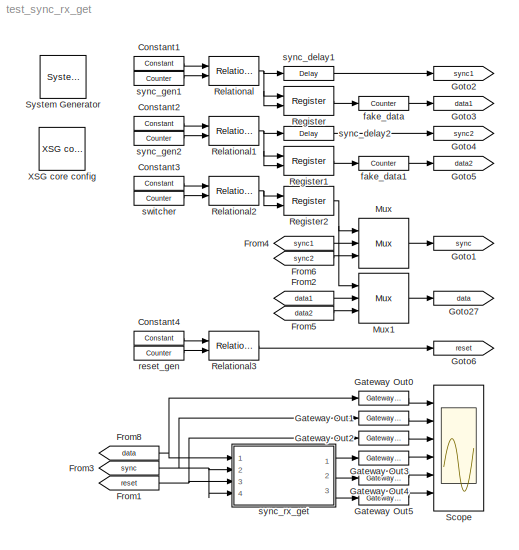
MODEL test_sync_rx_get
KIND model
BLOCK [Reference]  System Generator  REF=xbsIndex_r4/ System Generator
  AttributesFormatString = System\\nGenerator
  FunctionWithSeparateData = off
  Ports = []
  RTWMemSecDataConstants = Inherit from model
  RTWMemSecDataInternal = Inherit from model
  RTWMemSecDataParameters = Inherit from model
  RTWMemSecFuncExecute = Inherit from model
  RTWMemSecFuncInitTerm = Inherit from model
  SID = 1
  ShowPortLabels = FromPortIcon
  SourceBlock = xbsIndex_r4/ System Generator
  SourceType = Xilinx System Generator Block
  SystemSampleTime = -1
  Tag = genX
  UserData = DataTag0
  UserDataPersistent = on
  block_type = sysgen
  block_version = 10.1.1
  clock_wrapper = Clock Enables
  core_generation = According to Block Masks
  dbl_ovrd = According to Block Masks
  dcm_input_clock_period = 100
  deprecated_control = off
  directory = ./isi_correlator_cropped/sysgen
  eval_field = 0
  has_advanced_control = 0
  incr_netlist = off
  infoedit = System Generator
  package = ff1136
  part = xc5vsx95t
  run_coregen = off
  sg_icon_stat = 46,43,-1,-1,red,beige,0,07734,right
  sg_mask_display = fprintf('','COMMENT: begin icon graphics');\npatch([0 46 46 0 ],[0 0 43 43 ],[0.93 0.92 0.86]);\npatch([11 4 14 4 11 22 25 28 40 30 21 14 23 14 21 30 40 28 25 22 11 ],[5 12 22 32 39 39 36 39 39 29 38 31 22 13 6 15 5 5 8 5 5 ],[0.6 0.2 0.25]);\nplot([0 46 46 0 0 ],[0 0 43 43 0 ]);\nfprintf('','COMMENT: end icon graphics');\nfprintf('','COMMENT: begin icon text');\nfprintf('','COMMENT: end icon text...<+5ch>
  sggui_pos = -1,-1,-1,-1
  simulink_period = 1
  speed = -1
  synthesis_tool = XST
  sysclk_period = 5
  testbench = off
  trim_vbits = Everywhere in SubSystem
  xilinxfamily = virtex5
BLOCK [Reference] Constant1  REF=xbsIndex_r4/Constant
  Ports = [0, 1]
  SID = 25
  SourceBlock = xbsIndex_r4/Constant
  SourceType = Xilinx Constant Block Block
  arith_type = Unsigned
  bin_pt = 0
  block_type = constant
  block_version = 10.1.3
  carry = CIN
  const = 17
  dbl_ovrd = off
  dsp48_infoedit = The use of this block for DSP48 instructions is deprecated.  Please use the Opmode block.
  equ = P=C
  explicit_period = on
  has_advanced_control = 0
  inp1 = P
  inp2 = PCIN>>17
  n_bits = 7
  opr = +
  opselect = C
  period = 1
  sg_icon_stat = 50,14,0,1,white,blue,0,1802740d,right,
  sg_list_contents = {'table'=>{'carry'=>'popup(0|1|CIN|~SIGN(P or PCIN)|~SIGN(A*B or A:B)|~SIGND(A*B or A:B))','inp1'=>'popup(0|P|A:B|A*B|C|P+C|A:B+C)','inp2'=>'popup(0|PCIN|P|C|PCIN>>17|P>>17)','opselect'=>'popup(C + A*B|PCIN + A*B|P + A*B|A * B|C + A:B|C - A:B|C|Custom)','userSelections'=>{'carry'=>'CIN','inp1'=>'P','inp2'=>'PCIN>>17','opselect'=>'C'}}}  <repeated x5 — deduplicated; at blocks: Constant1, Constant2, Constant3, Constant4, Constant>
  sg_mask_display = fprintf('','COMMENT: begin icon graphics');\npatch([0 1 1 0 ],[0 0 1 1 ],[0.77 0.82 0.91]);\npatch([0.42 0.38 0.44 0.38 0.42 0.5 0.52 0.54 0.62 0.56 0.5 0.46 0.52 0.46 0.5 0.56 0.62 0.54 0.52 0.5 0.42 ],[0.142857 0.285714 0.5 0.714286 0.857143 0.857143 0.785714 0.857143 0.857143 0.642857 0.857143 0.714286 0.5 0.285714 0.142857 0.357143 0.142857 0.142857 0.214286 0.142857 0.142857 ],[0.98 0.96 0.92...<+207ch>
  sggui_pos = 20,20,400,346
BLOCK [Reference] Constant2  REF=xbsIndex_r4/Constant
  Ports = [0, 1]
  SID = 40
  SourceBlock = xbsIndex_r4/Constant
  SourceType = Xilinx Constant Block Block
  arith_type = Unsigned
  bin_pt = 0
  block_type = constant
  block_version = 10.1.3
  carry = CIN
  const = 27
  dbl_ovrd = off
  dsp48_infoedit = The use of this block for DSP48 instructions is deprecated.  Please use the Opmode block.
  equ = P=C
  explicit_period = on
  has_advanced_control = 0
  inp1 = P
  inp2 = PCIN>>17
  n_bits = 7
  opr = +
  opselect = C
  period = 1
  sg_icon_stat = 50,14,0,1,white,blue,0,63edda7d,right,
  sg_mask_display = fprintf('','COMMENT: begin icon graphics');\npatch([0 1 1 0 ],[0 0 1 1 ],[0.77 0.82 0.91]);\npatch([0.42 0.38 0.44 0.38 0.42 0.5 0.52 0.54 0.62 0.56 0.5 0.46 0.52 0.46 0.5 0.56 0.62 0.54 0.52 0.5 0.42 ],[0.142857 0.285714 0.5 0.714286 0.857143 0.857143 0.785714 0.857143 0.857143 0.642857 0.857143 0.714286 0.5 0.285714 0.142857 0.357143 0.142857 0.142857 0.214286 0.142857 0.142857 ],[0.98 0.96 0.92...<+207ch>
  sggui_pos = 20,20,400,346
BLOCK [Reference] Constant3  REF=xbsIndex_r4/Constant
  Ports = [0, 1]
  SID = 62
  SourceBlock = xbsIndex_r4/Constant
  SourceType = Xilinx Constant Block Block
  arith_type = Unsigned
  bin_pt = 0
  block_type = constant
  block_version = 10.1.3
  carry = CIN
  const = 128 + 10
  dbl_ovrd = off
  dsp48_infoedit = The use of this block for DSP48 instructions is deprecated.  Please use the Opmode block.
  equ = P=C
  explicit_period = on
  has_advanced_control = 0
  inp1 = P
  inp2 = PCIN>>17
  n_bits = 8
  opr = +
  opselect = C
  period = 1
  sg_icon_stat = 50,14,0,1,white,blue,0,f529c164,right,
  sg_mask_display = fprintf('','COMMENT: begin icon graphics');\npatch([0 1 1 0 ],[0 0 1 1 ],[0.77 0.82 0.91]);\npatch([0.42 0.38 0.44 0.38 0.42 0.5 0.52 0.54 0.62 0.56 0.5 0.46 0.52 0.46 0.5 0.56 0.62 0.54 0.52 0.5 0.42 ],[0.142857 0.285714 0.5 0.714286 0.857143 0.857143 0.785714 0.857143 0.857143 0.642857 0.857143 0.714286 0.5 0.285714 0.142857 0.357143 0.142857 0.142857 0.214286 0.142857 0.142857 ],[0.98 0.96 0.92...<+208ch>  <repeated x5 — deduplicated; at blocks: Constant3, reset_gen, switcher, sync_gen1, sync_gen2>
  sggui_pos = 21,25,473,439
BLOCK [Reference] Constant4  REF=xbsIndex_r4/Constant
  Ports = [0, 1]
  SID = 78
  SourceBlock = xbsIndex_r4/Constant
  SourceType = Xilinx Constant Block Block
  arith_type = Unsigned
  bin_pt = 0
  block_type = constant
  block_version = 10.1.3
  carry = CIN
  const = 3
  dbl_ovrd = off
  dsp48_infoedit = The use of this block for DSP48 instructions is deprecated.  Please use the Opmode block.
  equ = P=C
  explicit_period = on
  has_advanced_control = 0
  inp1 = P
  inp2 = PCIN>>17
  n_bits = 7
  opr = +
  opselect = C
  period = 1
  sg_icon_stat = 50,14,0,1,white,blue,0,279a71c8,right,
  sg_mask_display = fprintf('','COMMENT: begin icon graphics');\npatch([0 1 1 0 ],[0 0 1 1 ],[0.77 0.82 0.91]);\npatch([0.42 0.38 0.44 0.38 0.42 0.5 0.52 0.54 0.62 0.56 0.5 0.46 0.52 0.46 0.5 0.56 0.62 0.54 0.52 0.5 0.42 ],[0.142857 0.285714 0.5 0.714286 0.857143 0.857143 0.785714 0.857143 0.857143 0.642857 0.857143 0.714286 0.5 0.285714 0.142857 0.357143 0.142857 0.142857 0.214286 0.142857 0.142857 ],[0.98 0.96 0.92...<+206ch>
  sggui_pos = 20,20,400,346
BLOCK [From] From1
  CloseFcn = tagdialog Close
  GotoTag = reset
  SID = 68
BLOCK [From] From2
  CloseFcn = tagdialog Close
  GotoTag = data1
  SID = 57
BLOCK [From] From3
  CloseFcn = tagdialog Close
  GotoTag = sync
  SID = 30
BLOCK [From] From4
  CloseFcn = tagdialog Close
  GotoTag = sync1
  SID = 52
BLOCK [From] From5
  CloseFcn = tagdialog Close
  GotoTag = data2
  SID = 53
BLOCK [From] From6
  CloseFcn = tagdialog Close
  GotoTag = sync2
  SID = 56
BLOCK [From] From8
  CloseFcn = tagdialog Close
  GotoTag = data
  SID = 77
BLOCK [Reference] Gateway Out0  REF=xbsIndex_r4/Gateway Out
  LOCs = {}
  Ports = [1, 1]
  SID = 7
  SourceBlock = xbsIndex_r4/Gateway Out
  SourceType = Xilinx Gateway Out Block
  block_type = gatewayout
  block_version = 11.3
  has_advanced_control = 0
  hdl_port = on
  infoedit = Gateway out block.  Converts Xilinx fixed point inputs into ouputs of type Simulink integer, double, or fixed point.<br><br>Hardware notes:  In hardware these blocks become top level output ports or are discarded, depending on how they are configured.  <repeated x6 — deduplicated; at blocks: Gateway Out0, Gateway Out1, Gateway Out2, Gateway Out3, Gateway Out4, Gateway Out5>
  locs_specified = off
  sg_icon_stat = 50,14,1,1,white,yellow,0,cc31b7ac,right,
  sg_mask_display = fprintf('','COMMENT: begin icon graphics');\npatch([0 1 1 0 ],[0 0 1 1 ],[0.95 0.93 0.65]);\npatch([0.42 0.38 0.44 0.38 0.42 0.5 0.52 0.54 0.62 0.56 0.5 0.46 0.52 0.46 0.5 0.56 0.62 0.54 0.52 0.5 0.42 ],[0.142857 0.285714 0.5 0.714286 0.857143 0.857143 0.785714 0.857143 0.857143 0.642857 0.857143 0.714286 0.5 0.285714 0.142857 0.357143 0.142857 0.142857 0.214286 0.142857 0.142857 ],[0.98 0.96 0.92...<+288ch>  <repeated x6 — deduplicated; at blocks: Gateway Out0, Gateway Out1, Gateway Out2, Gateway Out3, Gateway Out4, Gateway Out5>
  sggui_pos = 20,20,527,581
  timing_constraint = None
  xl_area = [0,0,0,0,0,0,0]
  xl_use_area = off
BLOCK [Reference] Gateway Out1  REF=xbsIndex_r4/Gateway Out
  LOCs = {}
  Ports = [1, 1]
  SID = 8
  SourceBlock = xbsIndex_r4/Gateway Out
  SourceType = Xilinx Gateway Out Block
  block_type = gatewayout
  block_version = 11.3
  has_advanced_control = 0
  hdl_port = on
  locs_specified = off
  sg_icon_stat = 50,14,1,1,white,yellow,0,cc31b7ac,right,
  sggui_pos = 20,20,527,581
  timing_constraint = None
  xl_area = [0,0,0,0,0,0,0]
  xl_use_area = off
BLOCK [Reference] Gateway Out2  REF=xbsIndex_r4/Gateway Out
  LOCs = {}
  Ports = [1, 1]
  SID = 9
  SourceBlock = xbsIndex_r4/Gateway Out
  SourceType = Xilinx Gateway Out Block
  block_type = gatewayout
  block_version = 11.3
  has_advanced_control = 0
  hdl_port = on
  locs_specified = off
  sg_icon_stat = 50,14,1,1,white,yellow,0,cc31b7ac,right,
  sggui_pos = 20,20,527,581
  timing_constraint = None
  xl_area = [0,0,0,0,0,0,0]
  xl_use_area = off
BLOCK [Reference] Gateway Out3  REF=xbsIndex_r4/Gateway Out
  LOCs = {}
  Ports = [1, 1]
  SID = 85
  SourceBlock = xbsIndex_r4/Gateway Out
  SourceType = Xilinx Gateway Out Block
  block_type = gatewayout
  block_version = 11.3
  has_advanced_control = 0
  hdl_port = on
  locs_specified = off
  sg_icon_stat = 50,14,1,1,white,yellow,0,cc31b7ac,right,
  sggui_pos = 20,20,527,581
  timing_constraint = None
  xl_area = [0,0,0,0,0,0,0]
  xl_use_area = off
BLOCK [Reference] Gateway Out4  REF=xbsIndex_r4/Gateway Out
  LOCs = {}
  Ports = [1, 1]
  SID = 86
  SourceBlock = xbsIndex_r4/Gateway Out
  SourceType = Xilinx Gateway Out Block
  block_type = gatewayout
  block_version = 11.3
  has_advanced_control = 0
  hdl_port = on
  locs_specified = off
  sg_icon_stat = 50,14,1,1,white,yellow,0,cc31b7ac,right,
  sggui_pos = 20,20,527,581
  timing_constraint = None
  xl_area = [0,0,0,0,0,0,0]
  xl_use_area = off
BLOCK [Reference] Gateway Out5  REF=xbsIndex_r4/Gateway Out
  LOCs = {}
  Ports = [1, 1]
  SID = 87
  SourceBlock = xbsIndex_r4/Gateway Out
  SourceType = Xilinx Gateway Out Block
  block_type = gatewayout
  block_version = 11.3
  has_advanced_control = 0
  hdl_port = on
  locs_specified = off
  sg_icon_stat = 50,14,1,1,white,yellow,0,cc31b7ac,right,
  sggui_pos = 20,20,527,581
  timing_constraint = None
  xl_area = [0,0,0,0,0,0,0]
  xl_use_area = off
BLOCK [Goto] Goto1
  GotoTag = sync
  SID = 28
  TagVisibility = local
BLOCK [Goto] Goto2
  GotoTag = sync1
  SID = 47
  TagVisibility = local
BLOCK [Goto] Goto27
  GotoTag = data
  SID = 27
  TagVisibility = local
BLOCK [Goto] Goto3
  GotoTag = data1
  SID = 48
  TagVisibility = local
BLOCK [Goto] Goto4
  GotoTag = sync2
  SID = 49
  TagVisibility = local
BLOCK [Goto] Goto5
  GotoTag = data2
  SID = 50
  TagVisibility = local
BLOCK [Goto] Goto6
  GotoTag = reset
  SID = 79
  TagVisibility = local
BLOCK [Reference] Mux  REF=xbsIndex_r4/Mux
  Ports = [3, 1]
  SID = 60
  SourceBlock = xbsIndex_r4/Mux
  SourceType = Xilinx Bus Multiplexer Block
  arith_type = Unsigned
  bin_pt = 14
  block_type = mux
  block_version = 11.4
  dbl_ovrd = off
  en = off
  has_advanced_control = 0
  inputs = 2
  latency = 0
  n_bits = 16
  overflow = Wrap
  precision = Full
  quantization = Truncate
  sg_icon_stat = 50,50,3,1,white,blue,3,eb98d690,right,
  sg_mask_display = fprintf('','COMMENT: begin icon graphics');\npatch([0 1 1 0 ],[0 0.142857 0.857143 1 ],[0.77 0.82 0.91]);\npatch([0.22 0.06 0.3 0.06 0.22 0.48 0.56 0.64 0.92 0.7 0.48 0.32 0.56 0.32 0.48 0.7 0.92 0.64 0.56 0.48 0.22 ],[0.1 0.26 0.5 0.74 0.9 0.9 0.82 0.9 0.9 0.68 0.9 0.74 0.5 0.26 0.1 0.32 0.1 0.1 0.18 0.1 0.1 ],[0.98 0.96 0.92]);\nplot([0 1 1 0 0 ],[0 0.142857 0.857143 1 0 ]);\nfprintf('','COMMENT...<+284ch>
  sggui_pos = -1,-1,-1,-1
  xl_area = [0,0,0,0,0,0,0]
  xl_use_area = off
BLOCK [Reference] Mux1  REF=xbsIndex_r4/Mux
  Ports = [3, 1]
  SID = 61
  SourceBlock = xbsIndex_r4/Mux
  SourceType = Xilinx Bus Multiplexer Block
  arith_type = Unsigned
  bin_pt = 14
  block_type = mux
  block_version = 11.4
  dbl_ovrd = off
  en = off
  has_advanced_control = 0
  inputs = 2
  latency = 0
  n_bits = 16
  overflow = Wrap
  precision = Full
  quantization = Truncate
  sg_icon_stat = 50,50,3,1,white,blue,3,eb98d690,right,
  sg_mask_display = fprintf('','COMMENT: begin icon graphics');\npatch([0 1 1 0 ],[0 0.142857 0.857143 1 ],[0.77 0.82 0.91]);\npatch([0.22 0.06 0.3 0.06 0.22 0.48 0.56 0.64 0.92 0.7 0.48 0.32 0.56 0.32 0.48 0.7 0.92 0.64 0.56 0.48 0.22 ],[0.1 0.26 0.5 0.74 0.9 0.9 0.82 0.9 0.9 0.68 0.9 0.74 0.5 0.26 0.1 0.32 0.1 0.1 0.18 0.1 0.1 ],[0.98 0.96 0.92]);\nplot([0 1 1 0 0 ],[0 0.142857 0.857143 1 0 ]);\nfprintf('','COMMENT...<+284ch>
  sggui_pos = -1,-1,-1,-1
  xl_area = [0,0,0,0,0,0,0]
  xl_use_area = off
BLOCK [Reference] Register  REF=xbsIndex_r4/Register
  Ports = [2, 1]
  SID = 12
  SourceBlock = xbsIndex_r4/Register
  SourceType = Xilinx Register Block
  block_type = register
  block_version = 10.1.3
  dbl_ovrd = off
  en = on
  has_advanced_control = 0
  init = 0
  rst = off
  sg_icon_stat = 50,29,2,1,white,blue,0,01f465d5,right,
  sg_mask_display = fprintf('','COMMENT: begin icon graphics');\npatch([0 1 1 0 ],[0 0 1 1 ],[0.77 0.82 0.91]);\npatch([0.34 0.24 0.38 0.24 0.34 0.5 0.54 0.58 0.74 0.62 0.5 0.4 0.54 0.4 0.5 0.62 0.74 0.58 0.54 0.5 0.34 ],[0.103448 0.275862 0.517241 0.758621 0.931034 0.931034 0.862069 0.931034 0.931034 0.724138 0.931034 0.758621 0.517241 0.275862 0.103448 0.310345 0.103448 0.103448 0.172414 0.103448 0.103448 ],[0.98 0...<+354ch>  <repeated x3 — deduplicated; at blocks: Register, Register1, Register2>
  sggui_pos = 20,20,543,249
  xl_area = [0,0,0,0,0,0,0]
  xl_use_area = off
BLOCK [Reference] Register1  REF=xbsIndex_r4/Register
  Ports = [2, 1]
  SID = 45
  SourceBlock = xbsIndex_r4/Register
  SourceType = Xilinx Register Block
  block_type = register
  block_version = 10.1.3
  dbl_ovrd = off
  en = on
  has_advanced_control = 0
  init = 0
  rst = off
  sg_icon_stat = 50,29,2,1,white,blue,0,01f465d5,right,
  sggui_pos = 20,20,543,249
  xl_area = [0,0,0,0,0,0,0]
  xl_use_area = off
BLOCK [Reference] Register2  REF=xbsIndex_r4/Register
  Ports = [2, 1]
  SID = 65
  SourceBlock = xbsIndex_r4/Register
  SourceType = Xilinx Register Block
  block_type = register
  block_version = 10.1.3
  dbl_ovrd = off
  en = on
  has_advanced_control = 0
  init = 0
  rst = off
  sg_icon_stat = 50,29,2,1,white,blue,0,01f465d5,right,
  sggui_pos = 20,20,543,249
  xl_area = [0,0,0,0,0,0,0]
  xl_use_area = off
BLOCK [Reference] Relational  REF=xbsIndex_r4/Relational
  Ports = [2, 1]
  SID = 24
  SourceBlock = xbsIndex_r4/Relational
  SourceType = Xilinx Arithmetic Relational Operator Block
  block_type = relational
  block_version = 11.4
  dbl_ovrd = off
  en = off
  has_advanced_control = 0
  latency = 1
  mode = a=b
  sg_icon_stat = 50,29,2,1,white,blue,0,2d4703fd,right,
  sg_mask_display = fprintf('','COMMENT: begin icon graphics');\npatch([0 1 1 0 ],[0 0 1 1 ],[0.77 0.82 0.91]);\npatch([0.34 0.24 0.38 0.24 0.34 0.5 0.54 0.58 0.74 0.62 0.5 0.4 0.54 0.4 0.5 0.62 0.74 0.58 0.54 0.5 0.34 ],[0.103448 0.275862 0.517241 0.758621 0.931034 0.931034 0.862069 0.931034 0.931034 0.724138 0.931034 0.758621 0.517241 0.275862 0.103448 0.310345 0.103448 0.103448 0.172414 0.103448 0.103448 ],[0.98 0...<+330ch>  <repeated x4 — deduplicated; at blocks: Relational, Relational1, Relational2, Relational3>
  sggui_pos = -1,-1,-1,-1
  xl_area = [0,0,0,0,0,0,0]
  xl_use_area = off
BLOCK [Reference] Relational1  REF=xbsIndex_r4/Relational
  Ports = [2, 1]
  SID = 41
  SourceBlock = xbsIndex_r4/Relational
  SourceType = Xilinx Arithmetic Relational Operator Block
  block_type = relational
  block_version = 11.4
  dbl_ovrd = off
  en = off
  has_advanced_control = 0
  latency = 1
  mode = a=b
  sg_icon_stat = 50,29,2,1,white,blue,0,2d4703fd,right,
  sggui_pos = -1,-1,-1,-1
  xl_area = [0,0,0,0,0,0,0]
  xl_use_area = off
BLOCK [Reference] Relational2  REF=xbsIndex_r4/Relational
  Ports = [2, 1]
  SID = 63
  SourceBlock = xbsIndex_r4/Relational
  SourceType = Xilinx Arithmetic Relational Operator Block
  block_type = relational
  block_version = 11.4
  dbl_ovrd = off
  en = off
  has_advanced_control = 0
  latency = 1
  mode = a=b
  sg_icon_stat = 50,29,2,1,white,blue,0,2d4703fd,right,
  sggui_pos = -1,-1,-1,-1
  xl_area = [0,0,0,0,0,0,0]
  xl_use_area = off
BLOCK [Reference] Relational3  REF=xbsIndex_r4/Relational
  Ports = [2, 1]
  SID = 82
  SourceBlock = xbsIndex_r4/Relational
  SourceType = Xilinx Arithmetic Relational Operator Block
  block_type = relational
  block_version = 11.4
  dbl_ovrd = off
  en = off
  has_advanced_control = 0
  latency = 1
  mode = a=b
  sg_icon_stat = 50,29,2,1,white,blue,0,2d4703fd,right,
  sggui_pos = -1,-1,-1,-1
  xl_area = [0,0,0,0,0,0,0]
  xl_use_area = off
BLOCK [Scope] Scope
  DataFormat = StructureWithTime
  Floating = off
  NumInputPorts = 6
  Ports = [6]
  SID = 13
  SampleTime = 0
  TimeRange = 300
  YMax = 1~1~1.05~5~5~5
  YMin = -1~-1~0.95~-5~-5~-5
  ZoomMode = xonly
BLOCK [Reference] XSG core config  REF=xps_library/XSG core config  (lib defined in mdl_00b5cec29cd0, mdl_02ab6ecaa3d1, +5 more)
  BEE2_ctrl_clk_src = sys_clk
  BEE2_usr_clk_src = sys_clk
  CORR_clk_src = sys_clk
  FunctionWithSeparateData = off
  Ports = []
  ROACH_clk_src = adc0_clk
  RTWMemSecDataConstants = Inherit from model
  RTWMemSecDataInternal = Inherit from model
  RTWMemSecDataParameters = Inherit from model
  RTWMemSecFuncExecute = Inherit from model
  RTWMemSecFuncInitTerm = Inherit from model
  SID = 15
  ShowPortLabels = FromPortIcon
  SourceBlock = xps_library/XSG core config
  SourceType = xsg core config
  SystemSampleTime = -1
  Tag = xps:xsg
  clk_rate = 200
  clk_src = adc0_clk
  gpio_clk_bit_index = 0
  gpio_clk_io_group = iBOB:sma
  hw_sys = ROACH:sx95t
  iBOB_clk_src = sys_clk
  ibob_linux = off
  mpc_type = powerpc440_ext
  sample_period = 1
  synthesis_tool = XST
BLOCK [Reference] fake_data  REF=xbsIndex_r4/Counter
  Ports = [1, 1]
  SID = 16
  SourceBlock = xbsIndex_r4/Counter
  SourceType = Xilinx Counter Block
  arith_type = Unsigned
  bin_pt = 0
  block_type = counter
  block_version = 10.1.3
  cnt_by_val = 1
  cnt_to = Inf
  cnt_type = Free Running
  dbl_ovrd = off
  en = on
  explicit_period = on
  has_advanced_control = 0
  implementation = Fabric
  infoedit = Hardware notes: Free running counters are the least expensive in hardware.  A count limited counter is implemented by combining a counter with a comparator.
  load_pin = off
  n_bits = 5
  operation = Up
  period = 1
  rst = off
  sg_icon_stat = 50,14,1,1,white,blue,0,ed54cb7a,right,
  sg_mask_display = fprintf('','COMMENT: begin icon graphics');\npatch([0 1 1 0 ],[0 0 1 1 ],[0.77 0.82 0.91]);\npatch([0.42 0.38 0.44 0.38 0.42 0.5 0.52 0.54 0.62 0.56 0.5 0.46 0.52 0.46 0.5 0.56 0.62 0.54 0.52 0.5 0.42 ],[0.142857 0.285714 0.5 0.714286 0.857143 0.857143 0.785714 0.857143 0.857143 0.642857 0.857143 0.714286 0.5 0.285714 0.142857 0.357143 0.142857 0.142857 0.214286 0.142857 0.142857 ],[0.98 0.96 0.92...<+252ch>
  sggui_pos = 20,20,543,936
  start_count = 0
  use_behavioral_HDL = off
  use_rpm = off
  xl_area = [0,0,0,0,0,0,0]
  xl_use_area = off
BLOCK [Reference] fake_data1  REF=xbsIndex_r4/Counter
  Ports = [1, 1]
  SID = 46
  SourceBlock = xbsIndex_r4/Counter
  SourceType = Xilinx Counter Block
  arith_type = Unsigned
  bin_pt = 0
  block_type = counter
  block_version = 10.1.3
  cnt_by_val = 1
  cnt_to = Inf
  cnt_type = Free Running
  dbl_ovrd = off
  en = on
  explicit_period = on
  has_advanced_control = 0
  implementation = Fabric
  infoedit = Hardware notes: Free running counters are the least expensive in hardware.  A count limited counter is implemented by combining a counter with a comparator.
  load_pin = off
  n_bits = 5
  operation = Down
  period = 1
  rst = off
  sg_icon_stat = 50,14,1,1,white,blue,0,ed54cb7a,right,
  sg_mask_display = fprintf('','COMMENT: begin icon graphics');\npatch([0 1 1 0 ],[0 0 1 1 ],[0.77 0.82 0.91]);\npatch([0.42 0.38 0.44 0.38 0.42 0.5 0.52 0.54 0.62 0.56 0.5 0.46 0.52 0.46 0.5 0.56 0.62 0.54 0.52 0.5 0.42 ],[0.142857 0.285714 0.5 0.714286 0.857143 0.857143 0.785714 0.857143 0.857143 0.642857 0.857143 0.714286 0.5 0.285714 0.142857 0.357143 0.142857 0.142857 0.214286 0.142857 0.142857 ],[0.98 0.96 0.92...<+252ch>
  sggui_pos = 20,20,543,936
  start_count = 2^5 - 1
  use_behavioral_HDL = off
  use_rpm = off
  xl_area = [0,0,0,0,0,0,0]
  xl_use_area = off
BLOCK [Reference] reset_gen  REF=xbsIndex_r4/Counter
  Ports = [0, 1]
  SID = 84
  SourceBlock = xbsIndex_r4/Counter
  SourceType = Xilinx Counter Block
  arith_type = Unsigned
  bin_pt = 0
  block_type = counter
  block_version = 10.1.3
  cnt_by_val = 1
  cnt_to = Inf
  cnt_type = Free Running
  dbl_ovrd = off
  en = off
  explicit_period = on
  has_advanced_control = 0
  implementation = Fabric
  infoedit = Hardware notes: Free running counters are the least expensive in hardware.  A count limited counter is implemented by combining a counter with a comparator.
  load_pin = off
  n_bits = 8
  operation = Up
  period = 1
  rst = off
  sg_icon_stat = 50,14,0,1,white,blue,0,335d209d,right,
  sggui_pos = 0,0,543,936
  start_count = 0
  use_behavioral_HDL = off
  use_rpm = off
  xl_area = [0,0,0,0,0,0,0]
  xl_use_area = off
BLOCK [Reference] switcher  REF=xbsIndex_r4/Counter
  Ports = [0, 1]
  SID = 64
  SourceBlock = xbsIndex_r4/Counter
  SourceType = Xilinx Counter Block
  arith_type = Unsigned
  bin_pt = 0
  block_type = counter
  block_version = 10.1.3
  cnt_by_val = 1
  cnt_to = Inf
  cnt_type = Free Running
  dbl_ovrd = off
  en = off
  explicit_period = on
  has_advanced_control = 0
  implementation = Fabric
  infoedit = Hardware notes: Free running counters are the least expensive in hardware.  A count limited counter is implemented by combining a counter with a comparator.
  load_pin = off
  n_bits = 8
  operation = Up
  period = 1
  rst = off
  sg_icon_stat = 50,14,0,1,white,blue,0,335d209d,right,
  sggui_pos = 0,0,543,936
  start_count = 0
  use_behavioral_HDL = off
  use_rpm = off
  xl_area = [0,0,0,0,0,0,0]
  xl_use_area = off
BLOCK [Reference] sync_delay1  REF=xbsIndex_r4/Delay
  Ports = [1, 1]
  SID = 88
  SourceBlock = xbsIndex_r4/Delay
  SourceType = Xilinx Delay Block
  block_type = delay
  block_version = 10.1.3
  dbl_ovrd = off
  en = off
  has_advanced_control = 0
  infoedit = Hardware notes: A delay line is a chain, each link of which is an SRL16 followed by a flip-flop.
  latency = 1
  reg_retiming = off
  sg_icon_stat = 50,14,1,1,white,blue,0,07b98262,right,
  sg_mask_display = fprintf('','COMMENT: begin icon graphics');\npatch([0 1 1 0 ],[0 0 1 1 ],[0.77 0.82 0.91]);\npatch([0.42 0.38 0.44 0.38 0.42 0.5 0.52 0.54 0.62 0.56 0.5 0.46 0.52 0.46 0.5 0.56 0.62 0.54 0.52 0.5 0.42 ],[0.142857 0.285714 0.5 0.714286 0.857143 0.857143 0.785714 0.857143 0.857143 0.642857 0.857143 0.714286 0.5 0.285714 0.142857 0.357143 0.142857 0.142857 0.214286 0.142857 0.142857 ],[0.98 0.96 0.92...<+209ch>
  sggui_pos = 0,0,543,392
  xl_area = [0,0,0,0,0,0,0]
  xl_use_area = off
BLOCK [Reference] sync_delay2  REF=xbsIndex_r4/Delay
  Ports = [1, 1]
  SID = 89
  SourceBlock = xbsIndex_r4/Delay
  SourceType = Xilinx Delay Block
  block_type = delay
  block_version = 10.1.3
  dbl_ovrd = off
  en = off
  has_advanced_control = 0
  infoedit = Hardware notes: A delay line is a chain, each link of which is an SRL16 followed by a flip-flop.
  latency = 1
  reg_retiming = off
  sg_icon_stat = 50,14,1,1,white,blue,0,07b98262,right,
  sg_mask_display = fprintf('','COMMENT: begin icon graphics');\npatch([0 1 1 0 ],[0 0 1 1 ],[0.77 0.82 0.91]);\npatch([0.42 0.38 0.44 0.38 0.42 0.5 0.52 0.54 0.62 0.56 0.5 0.46 0.52 0.46 0.5 0.56 0.62 0.54 0.52 0.5 0.42 ],[0.142857 0.285714 0.5 0.714286 0.857143 0.857143 0.785714 0.857143 0.857143 0.642857 0.857143 0.714286 0.5 0.285714 0.142857 0.357143 0.142857 0.142857 0.214286 0.142857 0.142857 ],[0.98 0.96 0.92...<+209ch>
  sggui_pos = 0,0,543,392
  xl_area = [0,0,0,0,0,0,0]
  xl_use_area = off
BLOCK [Reference] sync_gen1  REF=xbsIndex_r4/Counter
  Ports = [0, 1]
  SID = 23
  SourceBlock = xbsIndex_r4/Counter
  SourceType = Xilinx Counter Block
  arith_type = Unsigned
  bin_pt = 0
  block_type = counter
  block_version = 10.1.3
  cnt_by_val = 1
  cnt_to = Inf
  cnt_type = Free Running
  dbl_ovrd = off
  en = off
  explicit_period = on
  has_advanced_control = 0
  implementation = Fabric
  infoedit = Hardware notes: Free running counters are the least expensive in hardware.  A count limited counter is implemented by combining a counter with a comparator.
  load_pin = off
  n_bits = 7
  operation = Up
  period = 1
  rst = off
  sg_icon_stat = 50,14,0,1,white,blue,0,335d209d,right,
  sggui_pos = 0,0,543,936
  start_count = 0
  use_behavioral_HDL = off
  use_rpm = off
  xl_area = [0,0,0,0,0,0,0]
  xl_use_area = off
BLOCK [Reference] sync_gen2  REF=xbsIndex_r4/Counter
  Ports = [0, 1]
  SID = 42
  SourceBlock = xbsIndex_r4/Counter
  SourceType = Xilinx Counter Block
  arith_type = Unsigned
  bin_pt = 0
  block_type = counter
  block_version = 10.1.3
  cnt_by_val = 1
  cnt_to = Inf
  cnt_type = Free Running
  dbl_ovrd = off
  en = off
  explicit_period = on
  has_advanced_control = 0
  implementation = Fabric
  infoedit = Hardware notes: Free running counters are the least expensive in hardware.  A count limited counter is implemented by combining a counter with a comparator.
  load_pin = off
  n_bits = 7
  operation = Up
  period = 1
  rst = off
  sg_icon_stat = 50,14,0,1,white,blue,0,335d209d,right,
  sggui_pos = 0,0,543,936
  start_count = 0
  use_behavioral_HDL = off
  use_rpm = off
  xl_area = [0,0,0,0,0,0,0]
  xl_use_area = off
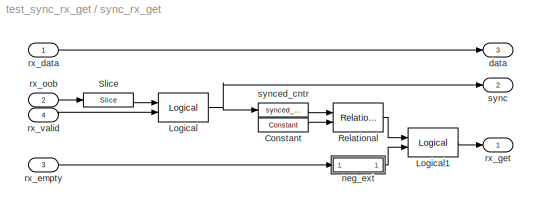
BLOCK [SubSystem] sync_rx_get
  AncestorBlock = isi_correlator_lib/sync_rx_get
  FunctionWithSeparateData = off
  MaskHideContents = off
  MinAlgLoopOccurrences = off
  Opaque = off
  Ports = [4, 3]
  PropExecContextOutsideSubsystem = off
  RTWSystemCode = Auto
  RequestExecContextInheritance = off
  SID = 75
BLOCK [Reference] sync_rx_get/Constant  REF=xbsIndex_r4/Constant
  Ports = [0, 1]
  SID = 1824
  SourceBlock = xbsIndex_r4/Constant
  SourceType = Xilinx Constant Block Block
  arith_type = Unsigned
  bin_pt = 0
  block_type = constant
  block_version = 11.4
  carry = CIN
  const = 2
  dbl_ovrd = off
  dsp48_infoedit = The use of this block for DSP48 instructions is deprecated.  Please use the Opmode block.
  equ = P=C
  explicit_period = on
  has_advanced_control = 0
  inp1 = P
  inp2 = PCIN>>17
  n_bits = 2
  opr = +
  opselect = C
  period = 1
  sg_icon_stat = 50,14,0,1,white,blue,0,fca86624,right,
  sg_mask_display = fprintf('','COMMENT: begin icon graphics');\npatch([0 1 1 0 ],[0 0 1 1 ],[0.77 0.82 0.91]);\npatch([0.42 0.38 0.44 0.38 0.42 0.5 0.52 0.54 0.62 0.56 0.5 0.46 0.52 0.46 0.5 0.56 0.62 0.54 0.52 0.5 0.42 ],[0.142857 0.285714 0.5 0.714286 0.857143 0.857143 0.785714 0.857143 0.857143 0.642857 0.857143 0.714286 0.5 0.285714 0.142857 0.357143 0.142857 0.142857 0.214286 0.142857 0.142857 ],[0.98 0.96 0.92...<+206ch>
  sggui_pos = -1,-1,-1,-1
BLOCK [Reference] sync_rx_get/Logical  REF=xbsIndex_r4/Logical
  Ports = [2, 1]
  SID = 1833
  SourceBlock = xbsIndex_r4/Logical
  SourceType = Xilinx Logical Block Block
  align_bp = on
  arith_type = Unsigned
  bin_pt = 0
  block_type = logical
  block_version = 11.4
  dbl_ovrd = off
  en = off
  has_advanced_control = 0
  inputs = 2
  latency = 0
  logical_function = AND
  n_bits = 16
  precision = Full
  sg_icon_stat = 50,29,2,1,white,blue,0,0a851f85,right,
  sg_list_contents = {'table'=>{'logical_function'=>'popup(AND|NAND|OR|NOR|XOR|XNOR)','userSelections'=>{'logical_function'=>'AND'}}}
  sg_mask_display = fprintf('','COMMENT: begin icon graphics');\npatch([0 1 1 0 ],[0 0 1 1 ],[0.77 0.82 0.91]);\npatch([0.34 0.24 0.38 0.24 0.34 0.5 0.54 0.58 0.74 0.62 0.5 0.4 0.54 0.4 0.5 0.62 0.74 0.58 0.54 0.5 0.34 ],[0.103448 0.275862 0.517241 0.758621 0.931034 0.931034 0.862069 0.931034 0.931034 0.724138 0.931034 0.758621 0.517241 0.275862 0.103448 0.310345 0.103448 0.103448 0.172414 0.103448 0.103448 ],[0.98 0...<+238ch>
  sggui_pos = -1,-1,-1,-1
  xl_area = [0,0,0,0,0,0,0]
  xl_use_area = off
BLOCK [Reference] sync_rx_get/Logical1  REF=xbsIndex_r4/Logical
  Ports = [2, 1]
  SID = 1839
  SourceBlock = xbsIndex_r4/Logical
  SourceType = Xilinx Logical Block Block
  align_bp = on
  arith_type = Unsigned
  bin_pt = 0
  block_type = logical
  block_version = 11.4
  dbl_ovrd = off
  en = off
  has_advanced_control = 0
  inputs = 2
  latency = 0
  logical_function = AND
  n_bits = 16
  precision = Full
  sg_icon_stat = 50,29,2,1,white,blue,0,0a851f85,right,
  sg_list_contents = {'table'=>{'logical_function'=>'popup(AND|NAND|OR|NOR|XOR|XNOR)','userSelections'=>{'logical_function'=>'AND'}}}
  sg_mask_display = fprintf('','COMMENT: begin icon graphics');\npatch([0 1 1 0 ],[0 0 1 1 ],[0.77 0.82 0.91]);\npatch([0.34 0.24 0.38 0.24 0.34 0.5 0.54 0.58 0.74 0.62 0.5 0.4 0.54 0.4 0.5 0.62 0.74 0.58 0.54 0.5 0.34 ],[0.103448 0.275862 0.517241 0.758621 0.931034 0.931034 0.862069 0.931034 0.931034 0.724138 0.931034 0.758621 0.517241 0.275862 0.103448 0.310345 0.103448 0.103448 0.172414 0.103448 0.103448 ],[0.98 0...<+238ch>
  sggui_pos = -1,-1,-1,-1
  xl_area = [0,0,0,0,0,0,0]
  xl_use_area = off
BLOCK [Reference] sync_rx_get/Relational  REF=xbsIndex_r4/Relational
  Ports = [2, 1]
  SID = 1827
  SourceBlock = xbsIndex_r4/Relational
  SourceType = Xilinx Arithmetic Relational Operator Block
  block_type = relational
  block_version = 11.4
  dbl_ovrd = off
  en = off
  has_advanced_control = 0
  latency = 0
  mode = a!=b
  sg_icon_stat = 50,29,2,1,white,blue,0,6a9ac0d0,right,
  sg_list_contents = {'table'=>{'mode'=>'popup(a=b|a!=b|a<b|a>b|a<=b|a>=b)','userSelections'=>{'mode'=>'a!=b'}}}
  sg_mask_display = fprintf('','COMMENT: begin icon graphics');\npatch([0 1 1 0 ],[0 0 1 1 ],[0.77 0.82 0.91]);\npatch([0.34 0.24 0.38 0.24 0.34 0.5 0.54 0.58 0.74 0.62 0.5 0.4 0.54 0.4 0.5 0.62 0.74 0.58 0.54 0.5 0.34 ],[0.103448 0.275862 0.517241 0.758621 0.931034 0.931034 0.862069 0.931034 0.931034 0.724138 0.931034 0.758621 0.517241 0.275862 0.103448 0.310345 0.103448 0.103448 0.172414 0.103448 0.103448 ],[0.98 0...<+331ch>
  sggui_pos = -1,-1,-1,-1
  xl_area = [0,0,0,0,0,0,0]
  xl_use_area = off
BLOCK [Reference] sync_rx_get/Slice  REF=xbsIndex_r4/Slice
  Ports = [1, 1]
  SID = 1834
  SourceBlock = xbsIndex_r4/Slice
  SourceType = Xilinx Bit Slice Extractor Block
  base0 = LSB of Input
  base1 = MSB of Input
  bit0 = 0
  bit1 = 0
  block_type = slice
  block_version = 10.1.3
  boolean_output = on
  dbl_ovrd = off
  has_advanced_control = 0
  infoedit = Extracts a given range of bits from each input sample and presents it at the output.  The output type is ordinarily unsigned with binary point at zero, but can be Boolean when the slice is one bit wide.<P><P>Hardware notes: In hardware this block costs nothing.
  mode = Lower Bit Location + Width
  nbits = 1
  sg_icon_stat = 50,14,1,1,white,blue,0,1fd851a7,right,
  sg_mask_display = fprintf('','COMMENT: begin icon graphics');\npatch([0 1 1 0 ],[0 0 1 1 ],[0.77 0.82 0.91]);\npatch([0.42 0.38 0.44 0.38 0.42 0.5 0.52 0.54 0.62 0.56 0.5 0.46 0.52 0.46 0.5 0.56 0.62 0.54 0.52 0.5 0.42 ],[0.142857 0.285714 0.5 0.714286 0.857143 0.857143 0.785714 0.857143 0.857143 0.642857 0.857143 0.714286 0.5 0.285714 0.142857 0.357143 0.142857 0.142857 0.214286 0.142857 0.142857 ],[0.98 0.96 0.92...<+210ch>
  sggui_pos = 20,20,631,621
BLOCK [Outport] sync_rx_get/data
  IconDisplay = Port number
  Port = 3
  SID = 1836
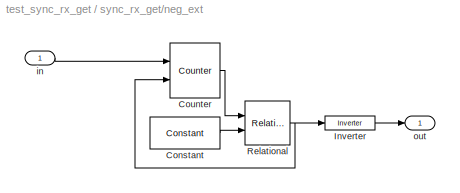
BLOCK [SubSystem] sync_rx_get/neg_ext
  FunctionWithSeparateData = off
  MaskDescription = Extends a boolean signal to be high for the specified number of clocks after\nthe last high input.
  MaskEnableString = on
  MaskHelp = eval('xlWeb(''http://casper.berkeley.edu/wiki/Pulse_ext'')')
  MaskHideContents = off
  MaskIconFrame = on
  MaskIconOpaque = on
  MaskIconRotate = none
  MaskIconUnits = autoscale
  MaskInitialization = bits = ceil(log2(pulse_len+1));
  MaskPortRotate = default
  MaskPromptString = Length of Pulse
  MaskStyleString = edit
  MaskToolTipString = on
  MaskTunableValueString = on
  MaskType = pulse_ext
  MaskValueString = 8
  MaskVariables = pulse_len=@1;
  MaskVisibilityString = on
  MinAlgLoopOccurrences = off
  Opaque = off
  Ports = [1, 1]
  PropExecContextOutsideSubsystem = off
  RTWSystemCode = Auto
  RequestExecContextInheritance = off
  SID = 1848
BLOCK [Reference] sync_rx_get/neg_ext/Constant  REF=xbsIndex_r4/Constant
  Ports = [0, 1]
  SID = 1850
  SourceBlock = xbsIndex_r4/Constant
  SourceType = Xilinx Constant Block Block
  arith_type = Unsigned
  bin_pt = 0
  block_type = constant
  block_version = 9.1.01
  carry = CIN
  const = pulse_len
  dbl_ovrd = off
  dsp48_infoedit = The use of this block for DSP48 instructions is deprecated.  Please use the Opmode block.
  equ = P=C
  explicit_period = off
  has_advanced_control = 0
  inp1 = P
  inp2 = PCIN>>17
  n_bits = bits
  opr = +
  opselect = C
  period = 1
  sg_icon_stat = 70,32,0,1,white,blue,0,7a8c02d8,right,
  sg_mask_display = fprintf('','COMMENT: begin icon graphics');\npatch([0 1 1 0 ],[0 0 1 1 ],[0.77 0.82 0.91]);\npatch([0.371429 0.3 0.4 0.3 0.371429 0.485714 0.514286 0.542857 0.671429 0.571429 0.471429 0.4 0.5 0.4 0.471429 0.571429 0.671429 0.542857 0.514286 0.485714 0.371429 ],[0.09375 0.25 0.46875 0.6875 0.84375 0.84375 0.78125 0.84375 0.84375 0.625 0.84375 0.6875 0.46875 0.25 0.09375 0.3125 0.09375 0.09375 0.156...<+242ch>
  sggui_pos = -1,-1,-1,-1
BLOCK [Reference] sync_rx_get/neg_ext/Counter  REF=xbsIndex_r4/Counter
  Ports = [2, 1]
  SID = 1851
  SourceBlock = xbsIndex_r4/Counter
  SourceType = Xilinx Counter Block
  arith_type = Unsigned
  bin_pt = 0
  block_type = counter
  block_version = 9.1.01
  cnt_by_val = 1
  cnt_to = 1023
  cnt_type = Free Running
  dbl_ovrd = off
  en = on
  explicit_period = on
  has_advanced_control = 0
  implementation = Fabric
  infoedit = Hardware notes: Free running counters are the least expensive in hardware.  A count limited counter is implemented by combining a counter with a comparator.
  load_pin = off
  n_bits = bits
  operation = Up
  period = 1
  rst = on
  sg_icon_stat = 50,55,2,1,white,blue,0,d605779c,right,
  sg_mask_display = fprintf('','COMMENT: begin icon graphics');\npatch([0 1 1 0 ],[0 0 1 1 ],[0.77 0.82 0.91]);\npatch([0.22 0.06 0.3 0.06 0.22 0.48 0.56 0.64 0.92 0.7 0.48 0.32 0.56 0.32 0.48 0.7 0.92 0.64 0.56 0.48 0.22 ],[0.145455 0.290909 0.509091 0.727273 0.872727 0.872727 0.8 0.872727 0.872727 0.672727 0.872727 0.727273 0.509091 0.290909 0.145455 0.345455 0.145455 0.145455 0.218182 0.145455 0.145455 ],[0.98 0.9...<+303ch>
  sggui_pos = -1,-1,-1,-1
  start_count = 0
  use_behavioral_HDL = off
  use_rpm = on
  xl_area = [0, 0, 0, 0, 0, 0, 0]
  xl_use_area = off
BLOCK [Reference] sync_rx_get/neg_ext/Inverter  REF=xbsIndex_r4/Inverter
  Ports = [1, 1]
  SID = 1852
  SourceBlock = xbsIndex_r4/Inverter
  SourceType = Xilinx Inverter Block
  block_type = inv
  block_version = 11.3
  dbl_ovrd = off
  en = off
  has_advanced_control = 0
  infoedit = Bitwise logical negation (one's complement) operator.
  latency = 0
  sg_icon_stat = 50,14,1,1,white,blue,0,267846e5,right,
  sg_mask_display = fprintf('','COMMENT: begin icon graphics');\npatch([0 1 1 0 ],[0 0 1 1 ],[0.77 0.82 0.91]);\npatch([0.42 0.38 0.44 0.38 0.42 0.5 0.52 0.54 0.62 0.56 0.5 0.46 0.52 0.46 0.5 0.56 0.62 0.54 0.52 0.5 0.42 ],[0.142857 0.285714 0.5 0.714286 0.857143 0.857143 0.785714 0.857143 0.857143 0.642857 0.857143 0.714286 0.5 0.285714 0.142857 0.357143 0.142857 0.142857 0.214286 0.142857 0.142857 ],[0.98 0.96 0.92...<+191ch>
  sggui_pos = -1,-1,-1,-1
  xl_area = [0,0,0,0,0,0,0]
  xl_use_area = off
BLOCK [Reference] sync_rx_get/neg_ext/Relational  REF=xbsIndex_r4/Relational
  Ports = [2, 1]
  SID = 1853
  SourceBlock = xbsIndex_r4/Relational
  SourceType = Xilinx Arithmetic Relational Operator Block
  block_type = relational
  block_version = 9.1.01
  dbl_ovrd = off
  en = off
  has_advanced_control = 0
  latency = 0
  mode = a!=b
  sg_icon_stat = 45,44,2,1,white,blue,0,6a9ac0d0,right,
  sg_list_contents = {'table'=>{'mode'=>'popup(a=b|a!=b|a<b|a>b|a<=b|a>=b)','userSelections'=>{'mode'=>'a!=b'}}}
  sg_mask_display = fprintf('','COMMENT: begin icon graphics');\npatch([0 1 1 0 ],[0 0 1 1 ],[0.77 0.82 0.91]);\npatch([0.222222 0.0666667 0.288889 0.0666667 0.222222 0.488889 0.555556 0.622222 0.888889 0.666667 0.466667 0.311111 0.511111 0.311111 0.466667 0.666667 0.888889 0.622222 0.555556 0.488889 0.222222 ],[0.113636 0.272727 0.5 0.727273 0.886364 0.886364 0.818182 0.886364 0.886364 0.659091 0.863636 0.704545 0.5...<+413ch>
  sggui_pos = -1,-1,-1,-1
  xl_area = [0, 0, 0, 0, 0, 0, 0]
  xl_use_area = off
BLOCK [Inport] sync_rx_get/neg_ext/in
  IconDisplay = Port number
  OutDataType = sfix(16)
  OutScaling = 2^0
  SID = 1849
BLOCK [Outport] sync_rx_get/neg_ext/out
  IconDisplay = Port number
  OutDataType = sfix(16)
  OutScaling = 2^0
  SID = 1854
BLOCK [Inport] sync_rx_get/rx_data
  IconDisplay = Port number
  SID = 1822
BLOCK [Inport] sync_rx_get/rx_empty
  IconDisplay = Port number
  Port = 3
  SID = 1831
BLOCK [Outport] sync_rx_get/rx_get
  IconDisplay = Port number
  SID = 1830
BLOCK [Inport] sync_rx_get/rx_oob
  IconDisplay = Port number
  Port = 2
  SID = 1823
BLOCK [Inport] sync_rx_get/rx_valid
  IconDisplay = Port number
  Port = 4
  SID = 1832
BLOCK [Outport] sync_rx_get/sync
  IconDisplay = Port number
  Port = 2
  SID = 1835
BLOCK [Reference] sync_rx_get/synced_cntr  REF=isi_correlator_lib/synced_cntr  (lib defined in mdl_4b72aa53f299)
  FunctionWithSeparateData = off
  Ports = [1, 1]
  RTWMemSecDataConstants = Inherit from model
  RTWMemSecDataInternal = Inherit from model
  RTWMemSecDataParameters = Inherit from model
  RTWMemSecFuncExecute = Inherit from model
  RTWMemSecFuncInitTerm = Inherit from model
  SID = 1829
  ShowPortLabels = FromPortIcon
  SourceBlock = isi_correlator_lib/synced_cntr
  SourceType = synced_cntr
  SystemSampleTime = -1
  period = 4
LINE Constant1:1 -> Relational:1
LINE Constant2:1 -> Relational1:1
LINE Constant3:1 -> Relational2:1
LINE Constant4:1 -> Relational3:1
NET From1:1 -> Gateway Out2:1, sync_rx_get:3
LINE From2:1 -> Mux1:2
NET From3:1 -> Gateway Out1:1, sync_rx_get:2, sync_rx_get:4
LINE From4:1 -> Mux:2
LINE From5:1 -> Mux1:3
LINE From6:1 -> Mux:3
NET From8:1 -> Gateway Out0:1, sync_rx_get:1
LINE Gateway Out0:1 -> Scope:1
LINE Gateway Out1:1 -> Scope:2
LINE Gateway Out2:1 -> Scope:3
LINE Gateway Out3:1 -> Scope:4
LINE Gateway Out4:1 -> Scope:5
LINE Gateway Out5:1 -> Scope:6
LINE Mux1:1 -> Goto27:1
LINE Mux:1 -> Goto1:1
LINE Register1:1 -> fake_data1:1
NET Register2:1 -> Mux1:1, Mux:1
LINE Register:1 -> fake_data:1
NET Relational1:1 -> Register1:1, Register1:2, sync_delay2:1
NET Relational2:1 -> Register2:1, Register2:2
LINE Relational3:1 -> Goto6:1
NET Relational:1 -> Register:1, Register:2, sync_delay1:1
LINE fake_data1:1 -> Goto5:1
LINE fake_data:1 -> Goto3:1
LINE reset_gen:1 -> Relational3:2
LINE switcher:1 -> Relational2:2
LINE sync_delay1:1 -> Goto2:1
LINE sync_delay2:1 -> Goto4:1
LINE sync_gen1:1 -> Relational:2
LINE sync_gen2:1 -> Relational1:2
LINE sync_rx_get/Constant:1 -> sync_rx_get/Relational:2
LINE sync_rx_get/Logical1:1 -> sync_rx_get/rx_get:1
NET sync_rx_get/Logical:1 -> sync_rx_get/sync:1, sync_rx_get/synced_cntr:1
LINE sync_rx_get/Relational:1 -> sync_rx_get/Logical1:1
LINE sync_rx_get/Slice:1 -> sync_rx_get/Logical:1
LINE sync_rx_get/neg_ext/Constant:1 -> sync_rx_get/neg_ext/Relational:2
LINE sync_rx_get/neg_ext/Counter:1 -> sync_rx_get/neg_ext/Relational:1
LINE sync_rx_get/neg_ext/Inverter:1 -> sync_rx_get/neg_ext/out:1
NET sync_rx_get/neg_ext/Relational:1 -> sync_rx_get/neg_ext/Counter:2, sync_rx_get/neg_ext/Inverter:1
LINE sync_rx_get/neg_ext/in:1 -> sync_rx_get/neg_ext/Counter:1
LINE sync_rx_get/neg_ext:1 -> sync_rx_get/Logical1:2
LINE sync_rx_get/rx_data:1 -> sync_rx_get/data:1
LINE sync_rx_get/rx_empty:1 -> sync_rx_get/neg_ext:1
LINE sync_rx_get/rx_oob:1 -> sync_rx_get/Slice:1
LINE sync_rx_get/rx_valid:1 -> sync_rx_get/Logical:2
LINE sync_rx_get/synced_cntr:1 -> sync_rx_get/Relational:1
LINE sync_rx_get:1 -> Gateway Out3:1
LINE sync_rx_get:2 -> Gateway Out4:1
LINE sync_rx_get:3 -> Gateway Out5:1
note: NET lines group one-source signal fan-out (src -> all destinations, sorted); 1:1 wires keep LINE
